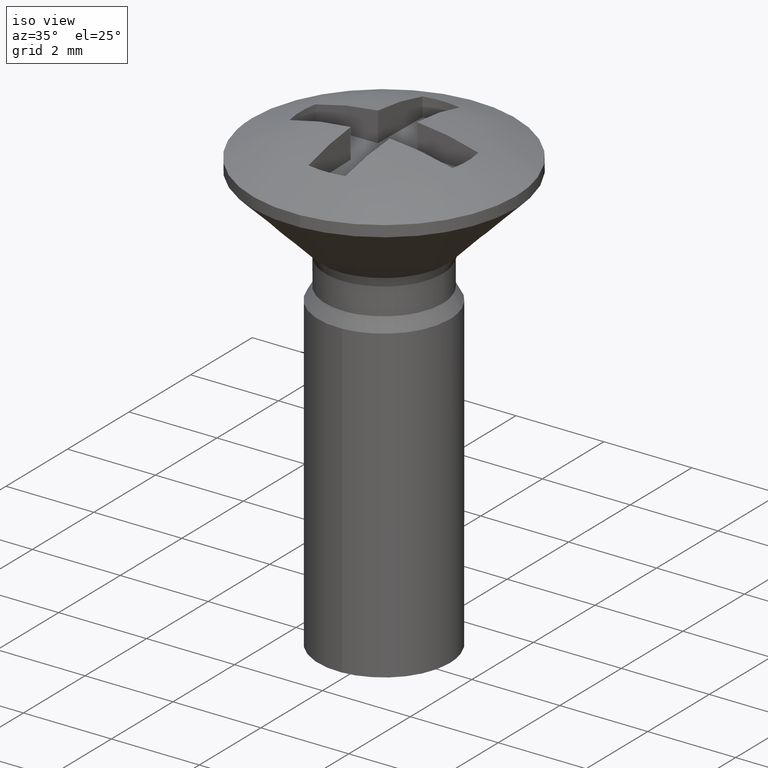
[diagram: clean part render]
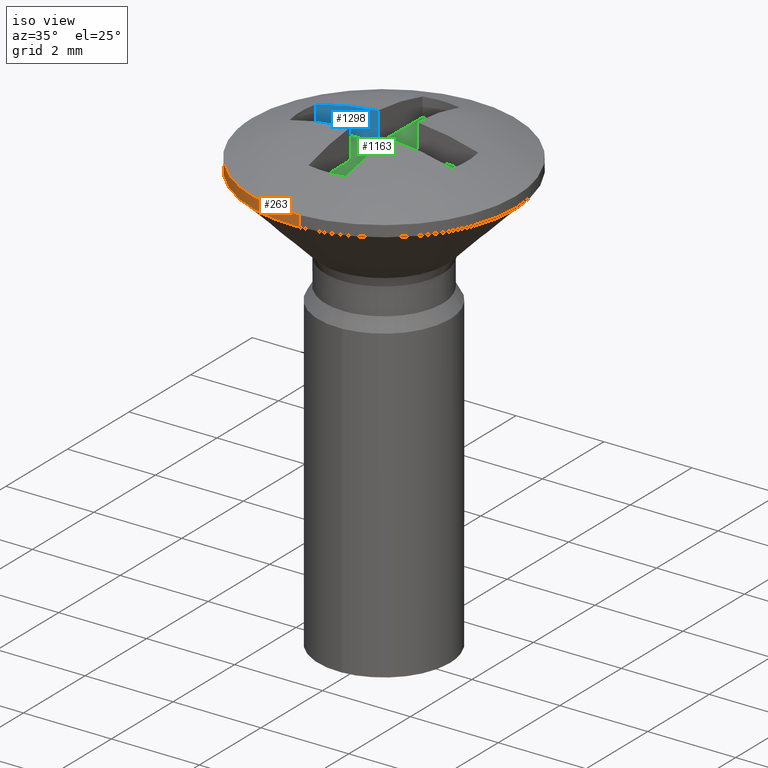
[diagram: same view with three faces highlighted in distinct colors, each labeled with its STEP entity id]
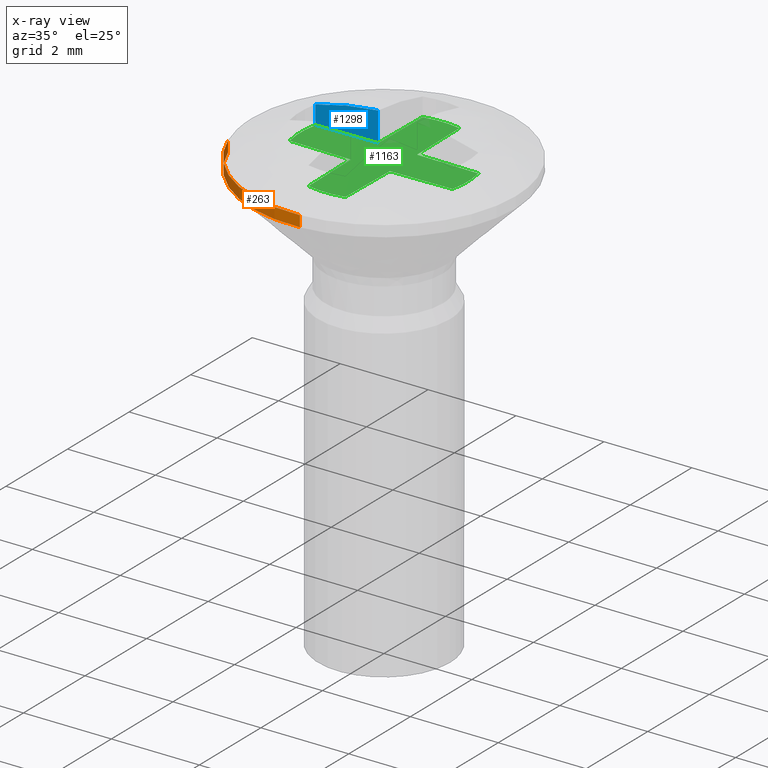
[diagram: x-ray of the same camera — body ghosted, the three highlighted faces saturated]
A machine part, iso view with three faces highlighted in distinct colors.
The next image is the same camera in x-ray (body ghosted, the three faces saturated) — at least one of them is partly hidden behind the body in this view.
Their STEP definitions:

[orange] entity #263 — the highlighted face is a freeform B-spline surface patch.
#70=CARTESIAN_POINT('',(-2.808431445811691,-1.054852034255032,9.135552E-014));
#71=VERTEX_POINT('',#70);
#104=CARTESIAN_POINT('',(0.183144965762107,-2.994404435195014,-1.321556E-014));
#105=VERTEX_POINT('',#104);
#119=CARTESIAN_POINT('',(0.183144973618660,-2.994404434714490,-0.249999999999993));
#120=VERTEX_POINT('',#119);
#121=CARTESIAN_POINT('',(0.183144965762107,-2.994404435195014,-1.321556E-014));
#122=CARTESIAN_POINT('',(0.183144973618660,-2.994404434714490,-0.249999999999993));
#123=QUASI_UNIFORM_CURVE('',1,(#121,#122),.UNSPECIFIED.,.F.,.U.);
#124=EDGE_CURVE('',#105,#120,#123,.T.);
#188=CARTESIAN_POINT('',(-2.808431437261378,-1.054852057019379,-0.249999999999993));
#189=VERTEX_POINT('',#188);
#203=CARTESIAN_POINT('',(-2.808431445811691,-1.054852034255032,9.135552E-014));
#204=CARTESIAN_POINT('',(-2.808431437261378,-1.054852057019379,-0.249999999999993));
#205=QUASI_UNIFORM_CURVE('',1,(#203,#204),.UNSPECIFIED.,.F.,.U.);
#206=EDGE_CURVE('',#71,#189,#205,.T.);
#211=CARTESIAN_POINT('',(0.200044293805216,-2.993370828013257,0.006250000000000));
#212=CARTESIAN_POINT('',(0.191604843262969,-2.993887006921051,0.006250000000000));
#213=CARTESIAN_POINT('',(-2.029108745409197,-3.129711668608025,0.006250000000000));
#214=CARTESIAN_POINT('',(-2.811720675645657,-1.046094827254570,0.006250000000000));
#215=CARTESIAN_POINT('',(-2.815005518690375,-1.037349299586585,0.006250000000000));
#216=CARTESIAN_POINT('',(0.200044293805216,-2.993370828013257,-0.256406249999993));
#217=CARTESIAN_POINT('',(0.191604843262969,-2.993887006921051,-0.256406249999993));
#218=CARTESIAN_POINT('',(-2.029108745409197,-3.129711668608025,-0.256406249999993));
#219=CARTESIAN_POINT('',(-2.811720675645657,-1.046094827254570,-0.256406249999993));
#220=CARTESIAN_POINT('',(-2.815005518690375,-1.037349299586585,-0.256406249999993));
#228=(BOUNDED_SURFACE()B_SPLINE_SURFACE(2,1,((#211,#216),(#212,#217),(#213,#218),(#214,#219),(#215,#220)),.UNSPECIFIED.,.F.,.F.,.U.)B_SPLINE_SURFACE_WITH_KNOTS((3,1,1,3),(2,2),(0.0,0.019745985396595,3.969092157056534,3.988841022146482),(0.0,0.262656249999993),.UNSPECIFIED.)GEOMETRIC_REPRESENTATION_ITEM()RATIONAL_B_SPLINE_SURFACE(((1.002343057294072,1.002343057294072),(1.001171528647036,1.001171528647036),(0.765685424949238,0.765685424949238),(0.906977189679183,0.906977189679183),(0.907680209378670,0.907680209378670)))REPRESENTATION_ITEM('')SURFACE());
#229=CARTESIAN_POINT('',(0.183144965762107,-2.994404435195014,-1.321556E-014));
#230=CARTESIAN_POINT('',(0.091657635222809,-3.000000000000000,0.0));
#231=CARTESIAN_POINT('',(0.0,-3.0,0.0));
#232=CARTESIAN_POINT('',(-2.077830279936320,-3.0,0.0));
#233=CARTESIAN_POINT('',(-2.808431445811691,-1.054852034255032,9.135552E-014));
#241=(BOUNDED_CURVE()B_SPLINE_CURVE(2,(#229,#230,#231,#232,#233),.UNSPECIFIED.,.F.,.U.)B_SPLINE_CURVE_WITH_KNOTS((3,2,3),(0.739333037479554,0.750000000000000,0.940284277134258),.UNSPECIFIED.)CURVE()GEOMETRIC_REPRESENTATION_ITEM()RATIONAL_B_SPLINE_CURVE((0.976072202921724,0.987502876049697,1.0,0.777068102322224,0.893499684642720))REPRESENTATION_ITEM(''));
#242=EDGE_CURVE('',#105,#71,#241,.T.);
#243=ORIENTED_EDGE('',*,*,#242,.T.);
#244=ORIENTED_EDGE('',*,*,#206,.T.);
#245=CARTESIAN_POINT('',(0.183144973618660,-2.994404434714490,-0.249999999999993));
#246=CARTESIAN_POINT('',(0.091657643101391,-3.000000000000000,-0.249999999999993));
#247=CARTESIAN_POINT('',(0.0,-3.0,-0.249999999999993));
#248=CARTESIAN_POINT('',(-2.077830261945178,-3.000000000000000,-0.249999999999993));
#249=CARTESIAN_POINT('',(-2.808431437261378,-1.054852057019379,-0.249999999999993));
#257=(BOUNDED_CURVE()B_SPLINE_CURVE(2,(#245,#246,#247,#248,#249),.UNSPECIFIED.,.F.,.U.)B_SPLINE_CURVE_WITH_KNOTS((3,2,3),(0.739333036574117,0.750000000000000,0.940284275853961),.UNSPECIFIED.)CURVE()GEOMETRIC_REPRESENTATION_ITEM()RATIONAL_B_SPLINE_CURVE((0.976072200981197,0.987502874988911,1.0,0.777068103822185,0.893499683075939))REPRESENTATION_ITEM(''));
#258=EDGE_CURVE('',#120,#189,#257,.T.);
#259=ORIENTED_EDGE('',*,*,#258,.F.);
#260=ORIENTED_EDGE('',*,*,#124,.F.);
#261=EDGE_LOOP('',(#243,#244,#259,#260));
#262=FACE_OUTER_BOUND('',#261,.T.);
#263=ADVANCED_FACE('',(#262),#228,.T.);

[blue] entity #1298 — the highlighted face is a freeform B-spline surface patch.
#1076=CARTESIAN_POINT('',(-0.444514109473131,0.443438705295617,0.0));
#1077=VERTEX_POINT('',#1076);
#1083=CARTESIAN_POINT('',(-1.852996593810965,0.420004313459948,0.0));
#1084=VERTEX_POINT('',#1083);
#1085=CARTESIAN_POINT('',(-1.852996593810965,0.420004313459948,0.0));
#1086=CARTESIAN_POINT('',(-0.444514109473131,0.443438705295617,0.0));
#1087=QUASI_UNIFORM_CURVE('',1,(#1085,#1086),.UNSPECIFIED.,.F.,.U.);
#1088=EDGE_CURVE('',#1084,#1077,#1087,.T.);
#1244=CARTESIAN_POINT('',(-0.444514109473131,0.443438705295617,0.670858295383802));
#1245=VERTEX_POINT('',#1244);
#1259=CARTESIAN_POINT('',(-0.444514109473131,0.443438705295617,0.670858295383802));
#1260=CARTESIAN_POINT('',(-0.444514109473131,0.443438705295617,0.0));
#1261=QUASI_UNIFORM_CURVE('',1,(#1259,#1260),.UNSPECIFIED.,.F.,.U.);
#1262=EDGE_CURVE('',#1245,#1077,#1261,.T.);
#1269=CARTESIAN_POINT('',(-0.374160402425887,0.444609465909562,-0.033509370554167));
#1270=CARTESIAN_POINT('',(-1.923350255226142,0.418829296828135,-0.033509370554167));
#1271=CARTESIAN_POINT('',(-0.374160402425887,0.444609465909562,0.704367683931791));
#1272=CARTESIAN_POINT('',(-1.923350255226142,0.418829296828135,0.704367683931791));
#1273=B_SPLINE_SURFACE_WITH_KNOTS('',1,1,((#1269,#1271),(#1270,#1272)),.UNSPECIFIED.,.F.,.F.,.U.,(2,2),(2,2),(0.041708327125758,0.958291687775403),(0.041708334948495,0.958291687403247),.UNSPECIFIED.);
#1274=CARTESIAN_POINT('',(-1.852996522993270,0.420000057861196,0.428274964003197));
#1275=VERTEX_POINT('',#1274);
#1276=CARTESIAN_POINT('',(-0.444514109473131,0.443438705295617,0.670858295383802));
#1277=CARTESIAN_POINT('',(-1.161642528306745,0.431504924644259,0.624412819833730));
#1278=CARTESIAN_POINT('',(-1.852996522993270,0.420000057861196,0.428274964003197));
#1286=(BOUNDED_CURVE()B_SPLINE_CURVE(2,(#1276,#1277,#1278),.UNSPECIFIED.,.F.,.U.)CURVE()GEOMETRIC_REPRESENTATION_ITEM()QUASI_UNIFORM_CURVE()RATIONAL_B_SPLINE_CURVE((1.0,0.994401301253553,1.0))REPRESENTATION_ITEM(''));
#1287=EDGE_CURVE('',#1245,#1275,#1286,.T.);
#1288=ORIENTED_EDGE('',*,*,#1287,.T.);
#1289=CARTESIAN_POINT('',(-1.852996522993270,0.420000057861196,0.428274964003197));
#1290=CARTESIAN_POINT('',(-1.852996593810965,0.420004313459948,0.0));
#1291=QUASI_UNIFORM_CURVE('',1,(#1289,#1290),.UNSPECIFIED.,.F.,.U.);
#1292=EDGE_CURVE('',#1275,#1084,#1291,.T.);
#1293=ORIENTED_EDGE('',*,*,#1292,.T.);
#1294=ORIENTED_EDGE('',*,*,#1088,.T.);
#1295=ORIENTED_EDGE('',*,*,#1262,.F.);
#1296=EDGE_LOOP('',(#1288,#1293,#1294,#1295));
#1297=FACE_OUTER_BOUND('',#1296,.T.);
#1298=ADVANCED_FACE('',(#1297),#1273,.F.);

[green] entity #1163 — the highlighted face is a freeform B-spline surface patch.
#1040=CARTESIAN_POINT('',(-2.089811240907042,2.089811298596660,0.0));
#1041=CARTESIAN_POINT('',(2.089810153943007,2.089811298596660,0.0));
#1042=CARTESIAN_POINT('',(-2.089811240907042,-2.089811366544403,0.0));
#1043=CARTESIAN_POINT('',(2.089810153943007,-2.089811366544403,0.0));
#1044=B_SPLINE_SURFACE_WITH_KNOTS('',1,1,((#1040,#1042),(#1041,#1043)),.UNSPECIFIED.,.F.,.F.,.U.,(2,2),(2,2),(0.0,4.179621394850050),(0.0,4.179622665141062),.UNSPECIFIED.);
#1045=CARTESIAN_POINT('',(0.444514109473113,0.443438705295618,0.0));
#1046=VERTEX_POINT('',#1045);
#1047=CARTESIAN_POINT('',(1.852997326853955,0.420001079370154,0.0));
#1048=VERTEX_POINT('',#1047);
#1049=CARTESIAN_POINT('',(0.444514109473113,0.443438705295618,0.0));
#1050=CARTESIAN_POINT('',(1.852997326853955,0.420001079370154,0.0));
#1051=QUASI_UNIFORM_CURVE('',1,(#1049,#1050),.UNSPECIFIED.,.F.,.U.);
#1052=EDGE_CURVE('',#1046,#1048,#1051,.T.);
#1053=ORIENTED_EDGE('',*,*,#1052,.F.);
#1054=CARTESIAN_POINT('',(0.420001079370150,1.852997326853955,0.0));
#1055=VERTEX_POINT('',#1054);
#1056=CARTESIAN_POINT('',(0.420001079370150,1.852997326853955,0.0));
#1057=CARTESIAN_POINT('',(0.444514109473113,0.443438705295618,0.0));
#1058=QUASI_UNIFORM_CURVE('',1,(#1056,#1057),.UNSPECIFIED.,.F.,.U.);
#1059=EDGE_CURVE('',#1055,#1046,#1058,.T.);
#1060=ORIENTED_EDGE('',*,*,#1059,.F.);
#1061=CARTESIAN_POINT('',(-0.420000000000009,1.853000000000110,0.0));
#1062=VERTEX_POINT('',#1061);
#1063=CARTESIAN_POINT('',(0.420001079370150,1.852997326853955,0.0));
#1064=CARTESIAN_POINT('',(0.000000580859724,1.948195895283205,0.0));
#1065=CARTESIAN_POINT('',(-0.420000000000009,1.853000000000110,0.0));
#1073=(BOUNDED_CURVE()B_SPLINE_CURVE(2,(#1063,#1064,#1065),.UNSPECIFIED.,.F.,.U.)CURVE()GEOMETRIC_REPRESENTATION_ITEM()QUASI_UNIFORM_CURVE()RATIONAL_B_SPLINE_CURVE((1.0,0.975261846585482,1.0))REPRESENTATION_ITEM(''));
#1074=EDGE_CURVE('',#1055,#1062,#1073,.T.);
#1075=ORIENTED_EDGE('',*,*,#1074,.T.);
#1076=CARTESIAN_POINT('',(-0.444514109473131,0.443438705295617,0.0));
#1077=VERTEX_POINT('',#1076);
#1078=CARTESIAN_POINT('',(-0.444514109473131,0.443438705295617,0.0));
#1079=CARTESIAN_POINT('',(-0.420000000000009,1.853000000000110,0.0));
#1080=QUASI_UNIFORM_CURVE('',1,(#1078,#1079),.UNSPECIFIED.,.F.,.U.);
#1081=EDGE_CURVE('',#1077,#1062,#1080,.T.);
#1082=ORIENTED_EDGE('',*,*,#1081,.F.);
#1083=CARTESIAN_POINT('',(-1.852996593810965,0.420004313459948,0.0));
#1084=VERTEX_POINT('',#1083);
#1085=CARTESIAN_POINT('',(-1.852996593810965,0.420004313459948,0.0));
#1086=CARTESIAN_POINT('',(-0.444514109473131,0.443438705295617,0.0));
#1087=QUASI_UNIFORM_CURVE('',1,(#1085,#1086),.UNSPECIFIED.,.F.,.U.);
#1088=EDGE_CURVE('',#1084,#1077,#1087,.T.);
#1089=ORIENTED_EDGE('',*,*,#1088,.F.);
#1090=CARTESIAN_POINT('',(-1.853000000000000,-0.419999999999888,0.0));
#1091=VERTEX_POINT('',#1090);
#1092=CARTESIAN_POINT('',(-1.852996593810965,0.420004313459948,0.0));
#1093=CARTESIAN_POINT('',(-1.948196280631687,0.000002280980924,0.0));
#1094=CARTESIAN_POINT('',(-1.853000000000000,-0.419999999999888,0.0));
#1102=(BOUNDED_CURVE()B_SPLINE_CURVE(2,(#1092,#1093,#1094),.UNSPECIFIED.,.F.,.U.)CURVE()GEOMETRIC_REPRESENTATION_ITEM()QUASI_UNIFORM_CURVE()RATIONAL_B_SPLINE_CURVE((1.0,0.975261653680176,1.0))REPRESENTATION_ITEM(''));
#1103=EDGE_CURVE('',#1084,#1091,#1102,.T.);
#1104=ORIENTED_EDGE('',*,*,#1103,.T.);
#1105=CARTESIAN_POINT('',(-0.444514101298721,-0.445241682772330,0.0));
#1106=VERTEX_POINT('',#1105);
#1107=CARTESIAN_POINT('',(-0.444514101298721,-0.445241682772330,0.0));
#1108=CARTESIAN_POINT('',(-1.853000000000000,-0.419999999999888,0.0));
#1109=QUASI_UNIFORM_CURVE('',1,(#1107,#1108),.UNSPECIFIED.,.F.,.U.);
#1110=EDGE_CURVE('',#1106,#1091,#1109,.T.);
#1111=ORIENTED_EDGE('',*,*,#1110,.F.);
#1112=CARTESIAN_POINT('',(-0.420004313459952,-1.852996593810965,0.0));
#1113=VERTEX_POINT('',#1112);
#1114=CARTESIAN_POINT('',(-0.420004313459952,-1.852996593810965,0.0));
#1115=CARTESIAN_POINT('',(-0.444514101298721,-0.445241682772330,0.0));
#1116=QUASI_UNIFORM_CURVE('',1,(#1114,#1115),.UNSPECIFIED.,.F.,.U.);
#1117=EDGE_CURVE('',#1113,#1106,#1116,.T.);
#1118=ORIENTED_EDGE('',*,*,#1117,.F.);
#1119=CARTESIAN_POINT('',(0.419999999999991,-1.853000000000000,0.0));
#1120=VERTEX_POINT('',#1119);
#1121=CARTESIAN_POINT('',(-0.420004313459952,-1.852996593810965,0.0));
#1122=CARTESIAN_POINT('',(-0.000002280980871,-1.948196280631711,0.0));
#1123=CARTESIAN_POINT('',(0.419999999999991,-1.853000000000000,0.0));
#1131=(BOUNDED_CURVE()B_SPLINE_CURVE(2,(#1121,#1122,#1123),.UNSPECIFIED.,.F.,.U.)CURVE()GEOMETRIC_REPRESENTATION_ITEM()QUASI_UNIFORM_CURVE()RATIONAL_B_SPLINE_CURVE((1.0,0.975261653680170,1.0))REPRESENTATION_ITEM(''));
#1132=EDGE_CURVE('',#1113,#1120,#1131,.T.);
#1133=ORIENTED_EDGE('',*,*,#1132,.T.);
#1134=CARTESIAN_POINT('',(0.444514101298703,-0.445241682772331,0.0));
#1135=VERTEX_POINT('',#1134);
#1136=CARTESIAN_POINT('',(0.444514101298703,-0.445241682772331,0.0));
#1137=CARTESIAN_POINT('',(0.419999999999991,-1.853000000000000,0.0));
#1138=QUASI_UNIFORM_CURVE('',1,(#1136,#1137),.UNSPECIFIED.,.F.,.U.);
#1139=EDGE_CURVE('',#1135,#1120,#1138,.T.);
#1140=ORIENTED_EDGE('',*,*,#1139,.F.);
#1141=CARTESIAN_POINT('',(1.852996593810965,-0.420004313459948,0.0));
#1142=VERTEX_POINT('',#1141);
#1143=CARTESIAN_POINT('',(1.852996593810965,-0.420004313459948,0.0));
#1144=CARTESIAN_POINT('',(0.444514101298703,-0.445241682772331,0.0));
#1145=QUASI_UNIFORM_CURVE('',1,(#1143,#1144),.UNSPECIFIED.,.F.,.U.);
#1146=EDGE_CURVE('',#1142,#1135,#1145,.T.);
#1147=ORIENTED_EDGE('',*,*,#1146,.F.);
#1148=CARTESIAN_POINT('',(1.852996593810965,-0.420004313459948,0.0));
#1149=CARTESIAN_POINT('',(1.948195316709831,-0.000001700121136,0.0));
#1150=CARTESIAN_POINT('',(1.852997326853956,0.420001079370153,0.0));
#1158=(BOUNDED_CURVE()B_SPLINE_CURVE(2,(#1148,#1149,#1150),.UNSPECIFIED.,.F.,.U.)CURVE()GEOMETRIC_REPRESENTATION_ITEM()QUASI_UNIFORM_CURVE()RATIONAL_B_SPLINE_CURVE((1.0,0.975261558070087,1.0))REPRESENTATION_ITEM(''));
#1159=EDGE_CURVE('',#1142,#1048,#1158,.T.);
#1160=ORIENTED_EDGE('',*,*,#1159,.T.);
#1161=EDGE_LOOP('',(#1053,#1060,#1075,#1082,#1089,#1104,#1111,#1118,#1133,#1140,#1147,#1160));
#1162=FACE_OUTER_BOUND('',#1161,.T.);
#1163=ADVANCED_FACE('',(#1162),#1044,.F.);